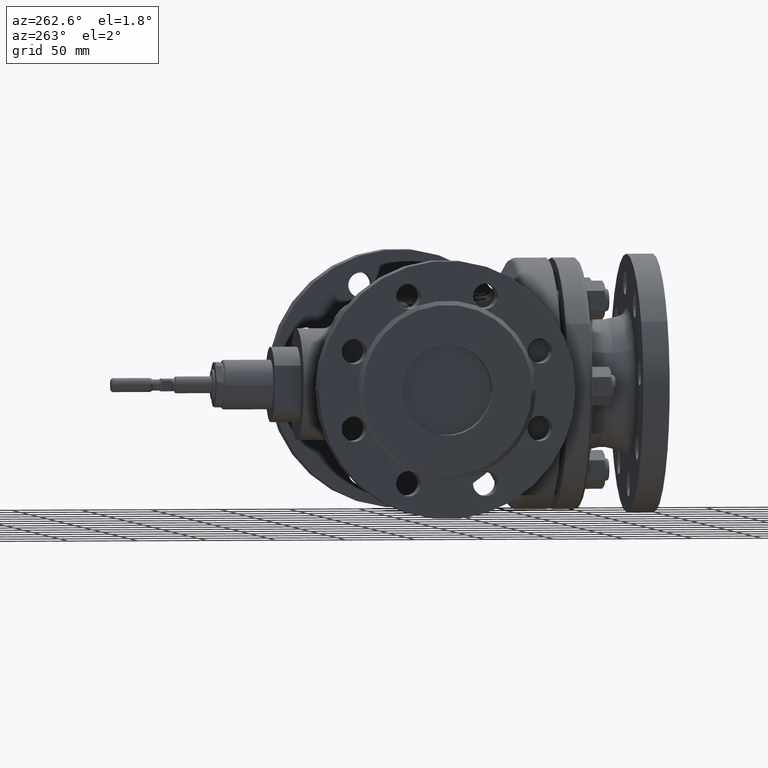
[diagram: clean part render]
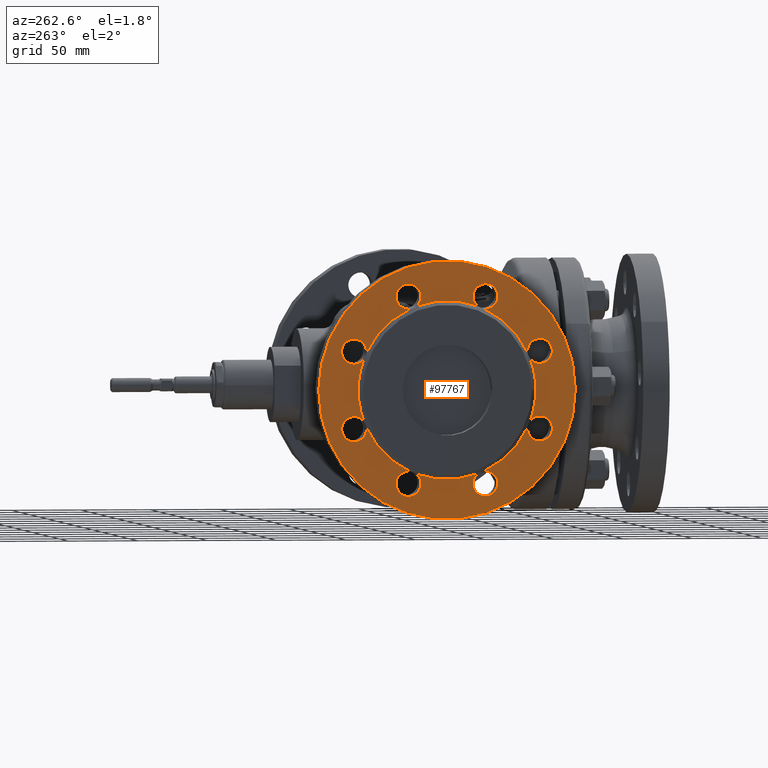
[diagram: same view with one face highlighted and labeled with its STEP entity id]
A machine part, auxiliary view. The second image highlights one B-rep face of the part: STEP entity #97767.
In plain terms, the highlighted planar face has unit normal (1, -0, 0).
Its self-contained STEP definition (entity closure, byte-faithful):
#47 = CARTESIAN_POINT ( 'NONE',  ( -142.0000000000000000, -27.03571817079068000, -58.00922291316765500 ) ) ;
#672 = VERTEX_POINT ( 'NONE', #50400 ) ;
#1314 = CIRCLE ( 'NONE', #85575, 8.999999999999987600 ) ;
#1904 = CARTESIAN_POINT ( 'NONE',  ( -142.0000000000000000, 27.74454884646881300, 66.98126610706837900 ) ) ;
#3853 = EDGE_LOOP ( 'NONE', ( #43077, #6294 ) ) ;
#4347 = AXIS2_PLACEMENT_3D ( 'NONE', #130141, #46340, #144201 ) ;
#4682 = AXIS2_PLACEMENT_3D ( 'NONE', #1904, #99740, #15972 ) ;
#5730 = DIRECTION ( 'NONE',  ( 0.0000000000000000000, 1.000000000000000000, 0.0000000000000000000 ) ) ;
#6208 = DIRECTION ( 'NONE',  ( 1.000000000000000000, -1.218524153187298600E-016, 0.0000000000000000000 ) ) ;
#6294 = ORIENTED_EDGE ( 'NONE', *, *, #68622, .T. ) ;
#6521 = ORIENTED_EDGE ( 'NONE', *, *, #26530, .T. ) ;
#7434 = CARTESIAN_POINT ( 'NONE',  ( -142.0000000000000000, 1.730304297525964100E-014, 0.0000000000000000000 ) ) ;
#7512 = CIRCLE ( 'NONE', #36558, 8.999999999999991100 ) ;
#8033 = ORIENTED_EDGE ( 'NONE', *, *, #16946, .T. ) ;
#8112 = DIRECTION ( 'NONE',  ( 1.000000000000000000, -1.218524153187298600E-016, 0.0000000000000000000 ) ) ;
#9145 = CIRCLE ( 'NONE', #58755, 63.99999999999998600 ) ;
#9493 = ORIENTED_EDGE ( 'NONE', *, *, #42419, .T. ) ;
#10171 = CARTESIAN_POINT ( 'NONE',  ( -142.0000000000000000, 27.74454884646881300, 57.98126610706839300 ) ) ;
#12134 = VERTEX_POINT ( 'NONE', #175512 ) ;
#12773 = ORIENTED_EDGE ( 'NONE', *, *, #68891, .F. ) ;
#13356 = DIRECTION ( 'NONE',  ( 0.0000000000000000000, 1.000000000000000000, 0.0000000000000000000 ) ) ;
#13654 = CARTESIAN_POINT ( 'NONE',  ( -142.0000000000000000, 1.730304297525964100E-014, 0.0000000000000000000 ) ) ;
#14703 = CARTESIAN_POINT ( 'NONE',  ( -141.9999999999999700, 66.98126610706850700, -27.74454884646857200 ) ) ;
#14903 = CARTESIAN_POINT ( 'NONE',  ( -142.0000000000000000, -66.98126610706846400, 36.74454884646856100 ) ) ;
#15190 = CIRCLE ( 'NONE', #38617, 8.999999999999987600 ) ;
#15316 = AXIS2_PLACEMENT_3D ( 'NONE', #91882, #8112, #105959 ) ;
#15430 = VERTEX_POINT ( 'NONE', #159228 ) ;
#15740 = CARTESIAN_POINT ( 'NONE',  ( -141.9999999999999700, 60.13585454607741800, -21.90157524044839100 ) ) ;
#15972 = DIRECTION ( 'NONE',  ( 0.0000000000000000000, 1.000000000000000000, 0.0000000000000000000 ) ) ;
#16946 = EDGE_CURVE ( 'NONE', #149664, #114210, #82194, .T. ) ;
#17390 = CARTESIAN_POINT ( 'NONE',  ( -142.0000000000000000, 1.730304297525964100E-014, 0.0000000000000000000 ) ) ;
#18991 = CARTESIAN_POINT ( 'NONE',  ( -141.9999999999999700, 66.98126610706850700, -36.74454884646856100 ) ) ;
#19608 = AXIS2_PLACEMENT_3D ( 'NONE', #113535, #29712, #127613 ) ;
#19745 = CIRCLE ( 'NONE', #105348, 8.999999999999991100 ) ;
#21247 = CARTESIAN_POINT ( 'NONE',  ( -142.0000000000000000, 27.74454884646881000, 75.98126610706837900 ) ) ;
#21486 = DIRECTION ( 'NONE',  ( 0.0000000000000000000, -1.000000000000000000, 0.0000000000000000000 ) ) ;
#21938 = VERTEX_POINT ( 'NONE', #155926 ) ;
#22100 = VERTEX_POINT ( 'NONE', #73364 ) ;
#25121 = ORIENTED_EDGE ( 'NONE', *, *, #58424, .T. ) ;
#25202 = EDGE_CURVE ( 'NONE', #32186, #12134, #169438, .T. ) ;
#25465 = EDGE_CURVE ( 'NONE', #32186, #22100, #53423, .T. ) ;
#26016 = VERTEX_POINT ( 'NONE', #171420 ) ;
#26284 = EDGE_CURVE ( 'NONE', #12134, #61773, #147512, .T. ) ;
#26530 = EDGE_CURVE ( 'NONE', #178918, #158365, #105904, .T. ) ;
#27173 = CIRCLE ( 'NONE', #118248, 63.99999999999998600 ) ;
#27588 = EDGE_CURVE ( 'NONE', #29980, #61773, #160831, .T. ) ;
#27684 = DIRECTION ( 'NONE',  ( 0.0000000000000000000, -1.000000000000000000, 0.0000000000000000000 ) ) ;
#28334 = CIRCLE ( 'NONE', #126495, 8.999999999999987600 ) ;
#28739 = DIRECTION ( 'NONE',  ( 0.0000000000000000000, 1.000000000000000000, 0.0000000000000000000 ) ) ;
#28887 = DIRECTION ( 'NONE',  ( 1.000000000000000000, -1.218524153187298600E-016, 0.0000000000000000000 ) ) ;
#28942 = CIRCLE ( 'NONE', #75111, 63.99999999999998600 ) ;
#29712 = DIRECTION ( 'NONE',  ( 1.000000000000000000, -1.218524153187298600E-016, 0.0000000000000000000 ) ) ;
#29776 = AXIS2_PLACEMENT_3D ( 'NONE', #13654, #111506, #27684 ) ;
#29980 = VERTEX_POINT ( 'NONE', #87654 ) ;
#31427 = DIRECTION ( 'NONE',  ( 0.0000000000000000000, -1.000000000000000000, 0.0000000000000000000 ) ) ;
#31941 = VERTEX_POINT ( 'NONE', #130926 ) ;
#32186 = VERTEX_POINT ( 'NONE', #103988 ) ;
#33512 = FACE_BOUND ( 'NONE', #55082, .T. ) ;
#34095 = CARTESIAN_POINT ( 'NONE',  ( -142.0000000000000000, -27.74454884646932500, 66.98126610706816600 ) ) ;
#34231 = DIRECTION ( 'NONE',  ( -1.000000000000000000, 1.218524153187298600E-016, 0.0000000000000000000 ) ) ;
#34720 = DIRECTION ( 'NONE',  ( -1.000000000000000000, 1.218524153187298600E-016, 0.0000000000000000000 ) ) ;
#35052 = ORIENTED_EDGE ( 'NONE', *, *, #102405, .F. ) ;
#35659 = DIRECTION ( 'NONE',  ( 1.000000000000000000, -1.218524153187298600E-016, 0.0000000000000000000 ) ) ;
#35709 = CIRCLE ( 'NONE', #177755, 63.99999999999998600 ) ;
#35812 = CIRCLE ( 'NONE', #101892, 63.99999999999998600 ) ;
#35970 = EDGE_CURVE ( 'NONE', #58257, #40426, #81700, .T. ) ;
#36215 = EDGE_CURVE ( 'NONE', #164600, #113526, #35709, .T. ) ;
#36530 = CARTESIAN_POINT ( 'NONE',  ( -142.0000000000000000, 1.730304297525964100E-014, 0.0000000000000000000 ) ) ;
#36558 = AXIS2_PLACEMENT_3D ( 'NONE', #62375, #160209, #76439 ) ;
#38106 = EDGE_CURVE ( 'NONE', #100605, #672, #162597, .T. ) ;
#38267 = CARTESIAN_POINT ( 'NONE',  ( -142.0000000000000000, 21.90157524044855500, -60.13585454607733300 ) ) ;
#38617 = AXIS2_PLACEMENT_3D ( 'NONE', #119469, #35659, #133549 ) ;
#40349 = VERTEX_POINT ( 'NONE', #134781 ) ;
#40426 = VERTEX_POINT ( 'NONE', #79728 ) ;
#41816 = EDGE_CURVE ( 'NONE', #31941, #174936, #96756, .T. ) ;
#42419 = EDGE_CURVE ( 'NONE', #15430, #152278, #50842, .T. ) ;
#43025 = VERTEX_POINT ( 'NONE', #21247 ) ;
#43077 = ORIENTED_EDGE ( 'NONE', *, *, #41816, .T. ) ;
#43490 = AXIS2_PLACEMENT_3D ( 'NONE', #180988, #97128, #13356 ) ;
#43727 = EDGE_CURVE ( 'NONE', #161470, #29980, #66101, .T. ) ;
#43951 = CIRCLE ( 'NONE', #121704, 8.999999999999987600 ) ;
#44554 = EDGE_CURVE ( 'NONE', #119360, #74573, #160159, .T. ) ;
#45141 = ORIENTED_EDGE ( 'NONE', *, *, #171250, .T. ) ;
#45153 = DIRECTION ( 'NONE',  ( 1.000000000000000000, -1.218524153187298600E-016, 0.0000000000000000000 ) ) ;
#45829 = ORIENTED_EDGE ( 'NONE', *, *, #25465, .T. ) ;
#45853 = AXIS2_PLACEMENT_3D ( 'NONE', #154576, #70808, #168674 ) ;
#46340 = DIRECTION ( 'NONE',  ( 1.000000000000000000, -1.218524153187298600E-016, 0.0000000000000000000 ) ) ;
#47085 = DIRECTION ( 'NONE',  ( 1.000000000000000000, -1.218524153187298600E-016, 0.0000000000000000000 ) ) ;
#47736 = EDGE_CURVE ( 'NONE', #152668, #40349, #120693, .T. ) ;
#47807 = CARTESIAN_POINT ( 'NONE',  ( -142.0000000000000000, 1.730304297525964100E-014, 0.0000000000000000000 ) ) ;
#48180 = DIRECTION ( 'NONE',  ( 0.0000000000000000000, 1.000000000000000000, 0.0000000000000000000 ) ) ;
#48285 = EDGE_CURVE ( 'NONE', #15430, #74573, #74684, .T. ) ;
#50400 = CARTESIAN_POINT ( 'NONE',  ( -142.0000000000000000, -27.74454884646932500, 57.98126610706818700 ) ) ;
#50402 = EDGE_CURVE ( 'NONE', #94924, #75006, #43951, .T. ) ;
#50615 = DIRECTION ( 'NONE',  ( 0.0000000000000000000, -1.000000000000000000, 0.0000000000000000000 ) ) ;
#50842 = CIRCLE ( 'NONE', #4347, 8.999999999999987600 ) ;
#51532 = CARTESIAN_POINT ( 'NONE',  ( -142.0000000000000000, 27.74454884646888800, -57.98126610706837900 ) ) ;
#52827 = VERTEX_POINT ( 'NONE', #119954 ) ;
#53423 = CIRCLE ( 'NONE', #67342, 8.999999999999994700 ) ;
#54132 = EDGE_CURVE ( 'NONE', #172685, #21938, #19745, .T. ) ;
#54461 = CARTESIAN_POINT ( 'NONE',  ( -142.0000000000000000, -60.13585454607739000, -21.90157524044833100 ) ) ;
#55082 = EDGE_LOOP ( 'NONE', ( #176667, #166429, #25121, #92388, #35052, #6521, #155961, #162790, #142630, #110192, #131682, #8033, #12773, #75863, #172954, #138872, #167916, #78808, #45829, #55263, #132071, #107922, #9493, #171049, #158934, #163721, #45141, #142207, #108154, #132239, #80883, #159548, #98920, #175843 ) ) ;
#55250 = VERTEX_POINT ( 'NONE', #102482 ) ;
#55263 = ORIENTED_EDGE ( 'NONE', *, *, #69962, .T. ) ;
#56507 = CIRCLE ( 'NONE', #15316, 8.999999999999987600 ) ;
#58214 = CARTESIAN_POINT ( 'NONE',  ( -142.0000000000000000, -21.90157524044899500, -60.13585454607715500 ) ) ;
#58257 = VERTEX_POINT ( 'NONE', #14903 ) ;
#58424 = EDGE_CURVE ( 'NONE', #166175, #55250, #139985, .T. ) ;
#58468 = EDGE_CURVE ( 'NONE', #101477, #166175, #28334, .T. ) ;
#58755 = AXIS2_PLACEMENT_3D ( 'NONE', #145121, #61346, #159183 ) ;
#59024 = EDGE_CURVE ( 'NONE', #43025, #26016, #15190, .T. ) ;
#60075 = CARTESIAN_POINT ( 'NONE',  ( -142.0000000000000000, -27.74454884646925000, -57.98126610706820100 ) ) ;
#61346 = DIRECTION ( 'NONE',  ( -1.000000000000000000, 1.218524153187298600E-016, 0.0000000000000000000 ) ) ;
#61773 = VERTEX_POINT ( 'NONE', #15740 ) ;
#61881 = DIRECTION ( 'NONE',  ( 0.0000000000000000000, -1.000000000000000000, 0.0000000000000000000 ) ) ;
#61997 = DIRECTION ( 'NONE',  ( 1.000000000000000000, -1.218524153187298600E-016, 0.0000000000000000000 ) ) ;
#62375 = CARTESIAN_POINT ( 'NONE',  ( -142.0000000000000000, 27.74454884646889100, -66.98126610706836500 ) ) ;
#62706 = DIRECTION ( 'NONE',  ( 1.000000000000000000, -1.218524153187298600E-016, 0.0000000000000000000 ) ) ;
#63123 = AXIS2_PLACEMENT_3D ( 'NONE', #155356, #71586, #169464 ) ;
#65655 = EDGE_CURVE ( 'NONE', #158365, #94924, #56507, .T. ) ;
#66101 = CIRCLE ( 'NONE', #19608, 8.999999999999994700 ) ;
#66195 = CARTESIAN_POINT ( 'NONE',  ( -141.9999999999999700, 66.98126610706850700, -27.74454884646857200 ) ) ;
#66640 = CIRCLE ( 'NONE', #124446, 8.999999999999994700 ) ;
#67342 = AXIS2_PLACEMENT_3D ( 'NONE', #112715, #28887, #126778 ) ;
#68622 = EDGE_CURVE ( 'NONE', #174936, #31941, #104585, .T. ) ;
#68891 = EDGE_CURVE ( 'NONE', #164605, #114210, #82654, .T. ) ;
#68931 = AXIS2_PLACEMENT_3D ( 'NONE', #118525, #34720, #132596 ) ;
#69399 = CARTESIAN_POINT ( 'NONE',  ( -142.0000000000000000, -63.99999999999997200, 0.0000000000000000000 ) ) ;
#69962 = EDGE_CURVE ( 'NONE', #22100, #119360, #181151, .T. ) ;
#70808 = DIRECTION ( 'NONE',  ( 1.000000000000000000, -1.218524153187298600E-016, 0.0000000000000000000 ) ) ;
#71586 = DIRECTION ( 'NONE',  ( 1.000000000000000000, -1.218524153187298600E-016, 0.0000000000000000000 ) ) ;
#73364 = CARTESIAN_POINT ( 'NONE',  ( -141.9999999999999700, 66.98126610706827900, 18.74454884646910800 ) ) ;
#74048 = DIRECTION ( 'NONE',  ( -1.000000000000000000, 1.218524153187298600E-016, 0.0000000000000000000 ) ) ;
#74573 = VERTEX_POINT ( 'NONE', #137799 ) ;
#74684 = CIRCLE ( 'NONE', #106425, 63.99999999999998600 ) ;
#75006 = VERTEX_POINT ( 'NONE', #58214 ) ;
#75111 = AXIS2_PLACEMENT_3D ( 'NONE', #80587, #178472, #94619 ) ;
#75854 = DIRECTION ( 'NONE',  ( -1.000000000000000000, 1.218524153187298600E-016, 0.0000000000000000000 ) ) ;
#75863 = ORIENTED_EDGE ( 'NONE', *, *, #173959, .T. ) ;
#76439 = DIRECTION ( 'NONE',  ( 0.0000000000000000000, 1.000000000000000000, 0.0000000000000000000 ) ) ;
#76443 = AXIS2_PLACEMENT_3D ( 'NONE', #34095, #131971, #48180 ) ;
#76577 = CARTESIAN_POINT ( 'NONE',  ( -142.0000000000000000, 1.730304297525964100E-014, 0.0000000000000000000 ) ) ;
#77500 = AXIS2_PLACEMENT_3D ( 'NONE', #118040, #34231, #132104 ) ;
#77941 = DIRECTION ( 'NONE',  ( 1.000000000000000000, -1.218524153187298600E-016, 0.0000000000000000000 ) ) ;
#78146 = DIRECTION ( 'NONE',  ( 1.000000000000000000, -1.218524153187298600E-016, 0.0000000000000000000 ) ) ;
#78538 = DIRECTION ( 'NONE',  ( 1.000000000000000000, -1.218524153187298600E-016, 0.0000000000000000000 ) ) ;
#78808 = ORIENTED_EDGE ( 'NONE', *, *, #25202, .F. ) ;
#79045 = DIRECTION ( 'NONE',  ( 1.000000000000000000, -1.218524153187298600E-016, 0.0000000000000000000 ) ) ;
#79728 = CARTESIAN_POINT ( 'NONE',  ( -142.0000000000000000, -66.98126610706846400, 18.74454884646858600 ) ) ;
#80276 = DIRECTION ( 'NONE',  ( 0.0000000000000000000, 1.000000000000000000, 0.0000000000000000000 ) ) ;
#80587 = CARTESIAN_POINT ( 'NONE',  ( -142.0000000000000000, 1.730304297525964100E-014, 0.0000000000000000000 ) ) ;
#80883 = ORIENTED_EDGE ( 'NONE', *, *, #150156, .T. ) ;
#81700 = CIRCLE ( 'NONE', #140187, 8.999999999999987600 ) ;
#82194 = CIRCLE ( 'NONE', #140995, 8.999999999999991100 ) ;
#82654 = CIRCLE ( 'NONE', #77500, 63.99999999999998600 ) ;
#83111 = DIRECTION ( 'NONE',  ( 1.000000000000000000, -1.218524153187298600E-016, 0.0000000000000000000 ) ) ;
#83463 = DIRECTION ( 'NONE',  ( -1.218524153187298600E-016, -1.000000000000000000, 0.0000000000000000000 ) ) ;
#85544 = AXIS2_PLACEMENT_3D ( 'NONE', #69399, #167251, #83463 ) ;
#85575 = AXIS2_PLACEMENT_3D ( 'NONE', #161700, #77941, #175834 ) ;
#86829 = AXIS2_PLACEMENT_3D ( 'NONE', #157824, #74048, #171919 ) ;
#87654 = CARTESIAN_POINT ( 'NONE',  ( -141.9999999999999700, 66.98126610706850700, -18.74454884646858200 ) ) ;
#89488 = DIRECTION ( 'NONE',  ( 1.000000000000000000, -1.218524153187298600E-016, 0.0000000000000000000 ) ) ;
#89974 = CARTESIAN_POINT ( 'NONE',  ( -142.0000000000000000, -66.98126610706846400, 27.74454884646857200 ) ) ;
#90630 = DIRECTION ( 'NONE',  ( 0.0000000000000000000, -1.000000000000000000, 0.0000000000000000000 ) ) ;
#90896 = EDGE_CURVE ( 'NONE', #101477, #152668, #27173, .T. ) ;
#91882 = CARTESIAN_POINT ( 'NONE',  ( -142.0000000000000000, -27.74454884646924700, -66.98126610706818000 ) ) ;
#91969 = AXIS2_PLACEMENT_3D ( 'NONE', #14703, #112560, #28739 ) ;
#91982 = CARTESIAN_POINT ( 'NONE',  ( -142.0000000000000000, 58.00922291316797400, -27.03571817079006600 ) ) ;
#92240 = AXIS2_PLACEMENT_3D ( 'NONE', #76577, #174469, #90630 ) ;
#92388 = ORIENTED_EDGE ( 'NONE', *, *, #107740, .T. ) ;
#94619 = DIRECTION ( 'NONE',  ( 0.0000000000000000000, -1.000000000000000000, 0.0000000000000000000 ) ) ;
#94924 = VERTEX_POINT ( 'NONE', #115031 ) ;
#95181 = EDGE_CURVE ( 'NONE', #172685, #75006, #35812, .T. ) ;
#96756 = CIRCLE ( 'NONE', #92240, 92.49999999999998600 ) ;
#97128 = DIRECTION ( 'NONE',  ( 1.000000000000000000, -1.218524153187298600E-016, 0.0000000000000000000 ) ) ;
#97767 = ADVANCED_FACE ( 'NONE', ( #178033, #33512 ), #139132, .F. ) ;
#98920 = ORIENTED_EDGE ( 'NONE', *, *, #164585, .T. ) ;
#99740 = DIRECTION ( 'NONE',  ( 1.000000000000000000, -1.218524153187298600E-016, 0.0000000000000000000 ) ) ;
#100605 = VERTEX_POINT ( 'NONE', #133466 ) ;
#101477 = VERTEX_POINT ( 'NONE', #54461 ) ;
#101892 = AXIS2_PLACEMENT_3D ( 'NONE', #159625, #75854, #173736 ) ;
#102405 = EDGE_CURVE ( 'NONE', #178918, #52827, #28942, .T. ) ;
#102482 = CARTESIAN_POINT ( 'NONE',  ( -142.0000000000000000, -66.98126610706843600, -36.74454884646862500 ) ) ;
#103136 = VERTEX_POINT ( 'NONE', #153892 ) ;
#103988 = CARTESIAN_POINT ( 'NONE',  ( -142.0000000000000000, 60.13585454607726200, 21.90157524044873200 ) ) ;
#104052 = DIRECTION ( 'NONE',  ( 0.0000000000000000000, 1.000000000000000000, 0.0000000000000000000 ) ) ;
#104585 = CIRCLE ( 'NONE', #86829, 92.49999999999998600 ) ;
#104832 = AXIS2_PLACEMENT_3D ( 'NONE', #162806, #79045, #176934 ) ;
#105268 = DIRECTION ( 'NONE',  ( -1.000000000000000000, 1.218524153187298600E-016, 0.0000000000000000000 ) ) ;
#105348 = AXIS2_PLACEMENT_3D ( 'NONE', #128960, #45153, #143011 ) ;
#105904 = CIRCLE ( 'NONE', #104832, 8.999999999999987600 ) ;
#105959 = DIRECTION ( 'NONE',  ( 0.0000000000000000000, 1.000000000000000000, 0.0000000000000000000 ) ) ;
#106391 = EDGE_CURVE ( 'NONE', #103136, #26016, #9145, .T. ) ;
#106425 = AXIS2_PLACEMENT_3D ( 'NONE', #36530, #134415, #50615 ) ;
#107740 = EDGE_CURVE ( 'NONE', #55250, #52827, #140419, .T. ) ;
#107922 = ORIENTED_EDGE ( 'NONE', *, *, #48285, .F. ) ;
#108154 = ORIENTED_EDGE ( 'NONE', *, *, #113128, .T. ) ;
#110192 = ORIENTED_EDGE ( 'NONE', *, *, #54132, .T. ) ;
#111506 = DIRECTION ( 'NONE',  ( -1.000000000000000000, 1.218524153187298600E-016, 0.0000000000000000000 ) ) ;
#112560 = DIRECTION ( 'NONE',  ( 1.000000000000000000, -1.218524153187298600E-016, 0.0000000000000000000 ) ) ;
#112715 = CARTESIAN_POINT ( 'NONE',  ( -141.9999999999999700, 66.98126610706827900, 27.74454884646910100 ) ) ;
#113128 = EDGE_CURVE ( 'NONE', #672, #113526, #166785, .T. ) ;
#113387 = AXIS2_PLACEMENT_3D ( 'NONE', #146490, #62706, #160547 ) ;
#113526 = VERTEX_POINT ( 'NONE', #174665 ) ;
#113535 = CARTESIAN_POINT ( 'NONE',  ( -141.9999999999999700, 66.98126610706850700, -27.74454884646857200 ) ) ;
#114210 = VERTEX_POINT ( 'NONE', #164153 ) ;
#115031 = CARTESIAN_POINT ( 'NONE',  ( -142.0000000000000000, -27.74454884646924700, -75.98126610706818000 ) ) ;
#115241 = DIRECTION ( 'NONE',  ( -1.000000000000000000, 1.218524153187298600E-016, 0.0000000000000000000 ) ) ;
#117959 = AXIS2_PLACEMENT_3D ( 'NONE', #161905, #78146, #176037 ) ;
#118040 = CARTESIAN_POINT ( 'NONE',  ( -142.0000000000000000, 1.730304297525964100E-014, 0.0000000000000000000 ) ) ;
#118248 = AXIS2_PLACEMENT_3D ( 'NONE', #17390, #115241, #31427 ) ;
#118525 = CARTESIAN_POINT ( 'NONE',  ( -142.0000000000000000, 1.730304297525964100E-014, 0.0000000000000000000 ) ) ;
#119360 = VERTEX_POINT ( 'NONE', #162256 ) ;
#119469 = CARTESIAN_POINT ( 'NONE',  ( -142.0000000000000000, 27.74454884646881300, 66.98126610706837900 ) ) ;
#119954 = CARTESIAN_POINT ( 'NONE',  ( -142.0000000000000000, -58.00922291316796700, -27.03571817079004400 ) ) ;
#120693 = CIRCLE ( 'NONE', #68931, 63.99999999999998600 ) ;
#121704 = AXIS2_PLACEMENT_3D ( 'NONE', #162299, #78538, #176425 ) ;
#124446 = AXIS2_PLACEMENT_3D ( 'NONE', #66195, #164041, #80276 ) ;
#126495 = AXIS2_PLACEMENT_3D ( 'NONE', #145769, #61997, #159832 ) ;
#126778 = DIRECTION ( 'NONE',  ( 0.0000000000000000000, 1.000000000000000000, 0.0000000000000000000 ) ) ;
#127613 = DIRECTION ( 'NONE',  ( 0.0000000000000000000, 1.000000000000000000, 0.0000000000000000000 ) ) ;
#128960 = CARTESIAN_POINT ( 'NONE',  ( -142.0000000000000000, 27.74454884646889100, -66.98126610706836500 ) ) ;
#130141 = CARTESIAN_POINT ( 'NONE',  ( -142.0000000000000000, 27.74454884646881300, 66.98126610706837900 ) ) ;
#130883 = CARTESIAN_POINT ( 'NONE',  ( -142.0000000000000000, 27.74454884646889100, -66.98126610706836500 ) ) ;
#130926 = CARTESIAN_POINT ( 'NONE',  ( -142.0000000000000000, -92.49999999999997200, 0.0000000000000000000 ) ) ;
#131682 = ORIENTED_EDGE ( 'NONE', *, *, #175319, .T. ) ;
#131971 = DIRECTION ( 'NONE',  ( 1.000000000000000000, -1.218524153187298600E-016, 0.0000000000000000000 ) ) ;
#132071 = ORIENTED_EDGE ( 'NONE', *, *, #44554, .T. ) ;
#132104 = DIRECTION ( 'NONE',  ( 0.0000000000000000000, -1.000000000000000000, 0.0000000000000000000 ) ) ;
#132239 = ORIENTED_EDGE ( 'NONE', *, *, #36215, .F. ) ;
#132596 = DIRECTION ( 'NONE',  ( 0.0000000000000000000, -1.000000000000000000, 0.0000000000000000000 ) ) ;
#132772 = CARTESIAN_POINT ( 'NONE',  ( -142.0000000000000000, -66.98126610706843600, -18.74454884646865300 ) ) ;
#133466 = CARTESIAN_POINT ( 'NONE',  ( -142.0000000000000000, -27.74454884646932800, 75.98126610706815100 ) ) ;
#133549 = DIRECTION ( 'NONE',  ( 0.0000000000000000000, 1.000000000000000000, 0.0000000000000000000 ) ) ;
#134415 = DIRECTION ( 'NONE',  ( -1.000000000000000000, 1.218524153187298600E-016, 0.0000000000000000000 ) ) ;
#134781 = CARTESIAN_POINT ( 'NONE',  ( -142.0000000000000000, -60.13585454607737500, 21.90157524044839500 ) ) ;
#137799 = CARTESIAN_POINT ( 'NONE',  ( -141.9999999999999700, 58.00922291316779700, 27.03571817079044200 ) ) ;
#138872 = ORIENTED_EDGE ( 'NONE', *, *, #27588, .T. ) ;
#139132 = PLANE ( 'NONE',  #85544 ) ;
#139985 = CIRCLE ( 'NONE', #164016, 8.999999999999987600 ) ;
#140187 = AXIS2_PLACEMENT_3D ( 'NONE', #89974, #6208, #104052 ) ;
#140419 = CIRCLE ( 'NONE', #161909, 8.999999999999987600 ) ;
#140995 = AXIS2_PLACEMENT_3D ( 'NONE', #130883, #47085, #144936 ) ;
#142207 = ORIENTED_EDGE ( 'NONE', *, *, #38106, .T. ) ;
#142328 = AXIS2_PLACEMENT_3D ( 'NONE', #47807, #145660, #61881 ) ;
#142524 = CARTESIAN_POINT ( 'NONE',  ( -142.0000000000000000, 92.50000000000000000, -1.132798289211301700E-014 ) ) ;
#142630 = ORIENTED_EDGE ( 'NONE', *, *, #95181, .F. ) ;
#143011 = DIRECTION ( 'NONE',  ( 0.0000000000000000000, 1.000000000000000000, 0.0000000000000000000 ) ) ;
#144201 = DIRECTION ( 'NONE',  ( 0.0000000000000000000, 1.000000000000000000, 0.0000000000000000000 ) ) ;
#144936 = DIRECTION ( 'NONE',  ( 0.0000000000000000000, 1.000000000000000000, 0.0000000000000000000 ) ) ;
#145121 = CARTESIAN_POINT ( 'NONE',  ( -142.0000000000000000, 1.730304297525964100E-014, 0.0000000000000000000 ) ) ;
#145660 = DIRECTION ( 'NONE',  ( -1.000000000000000000, 1.218524153187298600E-016, 0.0000000000000000000 ) ) ;
#145769 = CARTESIAN_POINT ( 'NONE',  ( -142.0000000000000000, -66.98126610706843600, -27.74454884646863900 ) ) ;
#146490 = CARTESIAN_POINT ( 'NONE',  ( -141.9999999999999700, 66.98126610706827900, 27.74454884646910100 ) ) ;
#147512 = CIRCLE ( 'NONE', #142328, 63.99999999999998600 ) ;
#147655 = CARTESIAN_POINT ( 'NONE',  ( -142.0000000000000000, -58.00922291316793200, 27.03571817079009800 ) ) ;
#149664 = VERTEX_POINT ( 'NONE', #51532 ) ;
#150156 = EDGE_CURVE ( 'NONE', #164600, #58257, #152587, .T. ) ;
#152026 = CARTESIAN_POINT ( 'NONE',  ( -142.0000000000000000, -63.99999999999995700, 0.0000000000000000000 ) ) ;
#152278 = VERTEX_POINT ( 'NONE', #10171 ) ;
#152437 = CIRCLE ( 'NONE', #4682, 8.999999999999987600 ) ;
#152587 = CIRCLE ( 'NONE', #63123, 8.999999999999987600 ) ;
#152668 = VERTEX_POINT ( 'NONE', #152026 ) ;
#153892 = CARTESIAN_POINT ( 'NONE',  ( -142.0000000000000000, -21.90157524044894900, 60.13585454607718400 ) ) ;
#154576 = CARTESIAN_POINT ( 'NONE',  ( -141.9999999999999700, 66.98126610706827900, 27.74454884646910100 ) ) ;
#155356 = CARTESIAN_POINT ( 'NONE',  ( -142.0000000000000000, -66.98126610706846400, 27.74454884646857200 ) ) ;
#155926 = CARTESIAN_POINT ( 'NONE',  ( -142.0000000000000000, 27.74454884646889100, -75.98126610706836500 ) ) ;
#155961 = ORIENTED_EDGE ( 'NONE', *, *, #65655, .T. ) ;
#157824 = CARTESIAN_POINT ( 'NONE',  ( -142.0000000000000000, 1.730304297525964100E-014, 0.0000000000000000000 ) ) ;
#158365 = VERTEX_POINT ( 'NONE', #60075 ) ;
#158934 = ORIENTED_EDGE ( 'NONE', *, *, #59024, .T. ) ;
#159183 = DIRECTION ( 'NONE',  ( 0.0000000000000000000, -1.000000000000000000, 0.0000000000000000000 ) ) ;
#159228 = CARTESIAN_POINT ( 'NONE',  ( -142.0000000000000000, 27.03571817079031100, 58.00922291316784700 ) ) ;
#159548 = ORIENTED_EDGE ( 'NONE', *, *, #35970, .T. ) ;
#159625 = CARTESIAN_POINT ( 'NONE',  ( -142.0000000000000000, 1.730304297525964100E-014, 0.0000000000000000000 ) ) ;
#159832 = DIRECTION ( 'NONE',  ( 0.0000000000000000000, 1.000000000000000000, 0.0000000000000000000 ) ) ;
#160159 = CIRCLE ( 'NONE', #113387, 8.999999999999994700 ) ;
#160209 = DIRECTION ( 'NONE',  ( 1.000000000000000000, -1.218524153187298600E-016, 0.0000000000000000000 ) ) ;
#160547 = DIRECTION ( 'NONE',  ( 0.0000000000000000000, 1.000000000000000000, 0.0000000000000000000 ) ) ;
#160831 = CIRCLE ( 'NONE', #91969, 8.999999999999994700 ) ;
#161060 = EDGE_CURVE ( 'NONE', #152278, #43025, #152437, .T. ) ;
#161470 = VERTEX_POINT ( 'NONE', #18991 ) ;
#161700 = CARTESIAN_POINT ( 'NONE',  ( -142.0000000000000000, -66.98126610706846400, 27.74454884646857200 ) ) ;
#161905 = CARTESIAN_POINT ( 'NONE',  ( -142.0000000000000000, -27.74454884646932500, 66.98126610706816600 ) ) ;
#161909 = AXIS2_PLACEMENT_3D ( 'NONE', #166899, #83111, #181013 ) ;
#162256 = CARTESIAN_POINT ( 'NONE',  ( -141.9999999999999700, 66.98126610706827900, 36.74454884646909400 ) ) ;
#162299 = CARTESIAN_POINT ( 'NONE',  ( -142.0000000000000000, -27.74454884646924700, -66.98126610706818000 ) ) ;
#162597 = CIRCLE ( 'NONE', #117959, 8.999999999999987600 ) ;
#162790 = ORIENTED_EDGE ( 'NONE', *, *, #50402, .T. ) ;
#162806 = CARTESIAN_POINT ( 'NONE',  ( -142.0000000000000000, -27.74454884646924700, -66.98126610706818000 ) ) ;
#163721 = ORIENTED_EDGE ( 'NONE', *, *, #106391, .F. ) ;
#164016 = AXIS2_PLACEMENT_3D ( 'NONE', #173330, #89488, #5730 ) ;
#164041 = DIRECTION ( 'NONE',  ( 1.000000000000000000, -1.218524153187298600E-016, 0.0000000000000000000 ) ) ;
#164153 = CARTESIAN_POINT ( 'NONE',  ( -142.0000000000000000, 27.03571817079026100, -58.00922291316788200 ) ) ;
#164585 = EDGE_CURVE ( 'NONE', #40426, #40349, #1314, .T. ) ;
#164600 = VERTEX_POINT ( 'NONE', #147655 ) ;
#164605 = VERTEX_POINT ( 'NONE', #91982 ) ;
#166175 = VERTEX_POINT ( 'NONE', #132772 ) ;
#166429 = ORIENTED_EDGE ( 'NONE', *, *, #58468, .T. ) ;
#166785 = CIRCLE ( 'NONE', #76443, 8.999999999999987600 ) ;
#166899 = CARTESIAN_POINT ( 'NONE',  ( -142.0000000000000000, -66.98126610706843600, -27.74454884646863900 ) ) ;
#167251 = DIRECTION ( 'NONE',  ( 1.000000000000000000, -1.218524153187298600E-016, 0.0000000000000000000 ) ) ;
#167916 = ORIENTED_EDGE ( 'NONE', *, *, #26284, .F. ) ;
#168674 = DIRECTION ( 'NONE',  ( 0.0000000000000000000, 1.000000000000000000, 0.0000000000000000000 ) ) ;
#169438 = CIRCLE ( 'NONE', #29776, 63.99999999999998600 ) ;
#169464 = DIRECTION ( 'NONE',  ( 0.0000000000000000000, 1.000000000000000000, 0.0000000000000000000 ) ) ;
#171049 = ORIENTED_EDGE ( 'NONE', *, *, #161060, .T. ) ;
#171250 = EDGE_CURVE ( 'NONE', #103136, #100605, #180568, .T. ) ;
#171420 = CARTESIAN_POINT ( 'NONE',  ( -142.0000000000000000, 21.90157524044861500, 60.13585454607731900 ) ) ;
#171919 = DIRECTION ( 'NONE',  ( 0.0000000000000000000, -1.000000000000000000, 0.0000000000000000000 ) ) ;
#172685 = VERTEX_POINT ( 'NONE', #38267 ) ;
#172954 = ORIENTED_EDGE ( 'NONE', *, *, #43727, .T. ) ;
#173330 = CARTESIAN_POINT ( 'NONE',  ( -142.0000000000000000, -66.98126610706843600, -27.74454884646863900 ) ) ;
#173736 = DIRECTION ( 'NONE',  ( 0.0000000000000000000, -1.000000000000000000, 0.0000000000000000000 ) ) ;
#173959 = EDGE_CURVE ( 'NONE', #164605, #161470, #66640, .T. ) ;
#174469 = DIRECTION ( 'NONE',  ( -1.000000000000000000, 1.218524153187298600E-016, 0.0000000000000000000 ) ) ;
#174665 = CARTESIAN_POINT ( 'NONE',  ( -142.0000000000000000, -27.03571817079062700, 58.00922291316767600 ) ) ;
#174936 = VERTEX_POINT ( 'NONE', #142524 ) ;
#175319 = EDGE_CURVE ( 'NONE', #21938, #149664, #7512, .T. ) ;
#175512 = CARTESIAN_POINT ( 'NONE',  ( -142.0000000000000000, 64.00000000000001400, -7.837739514543060500E-015 ) ) ;
#175834 = DIRECTION ( 'NONE',  ( 0.0000000000000000000, 1.000000000000000000, 0.0000000000000000000 ) ) ;
#175843 = ORIENTED_EDGE ( 'NONE', *, *, #47736, .F. ) ;
#176037 = DIRECTION ( 'NONE',  ( 0.0000000000000000000, 1.000000000000000000, 0.0000000000000000000 ) ) ;
#176425 = DIRECTION ( 'NONE',  ( 0.0000000000000000000, 1.000000000000000000, 0.0000000000000000000 ) ) ;
#176667 = ORIENTED_EDGE ( 'NONE', *, *, #90896, .F. ) ;
#176934 = DIRECTION ( 'NONE',  ( 0.0000000000000000000, 1.000000000000000000, 0.0000000000000000000 ) ) ;
#177755 = AXIS2_PLACEMENT_3D ( 'NONE', #7434, #105268, #21486 ) ;
#178033 = FACE_OUTER_BOUND ( 'NONE', #3853, .T. ) ;
#178472 = DIRECTION ( 'NONE',  ( -1.000000000000000000, 1.218524153187298600E-016, 0.0000000000000000000 ) ) ;
#178918 = VERTEX_POINT ( 'NONE', #47 ) ;
#180568 = CIRCLE ( 'NONE', #43490, 8.999999999999987600 ) ;
#180988 = CARTESIAN_POINT ( 'NONE',  ( -142.0000000000000000, -27.74454884646932500, 66.98126610706816600 ) ) ;
#181013 = DIRECTION ( 'NONE',  ( 0.0000000000000000000, 1.000000000000000000, 0.0000000000000000000 ) ) ;
#181151 = CIRCLE ( 'NONE', #45853, 8.999999999999994700 ) ;